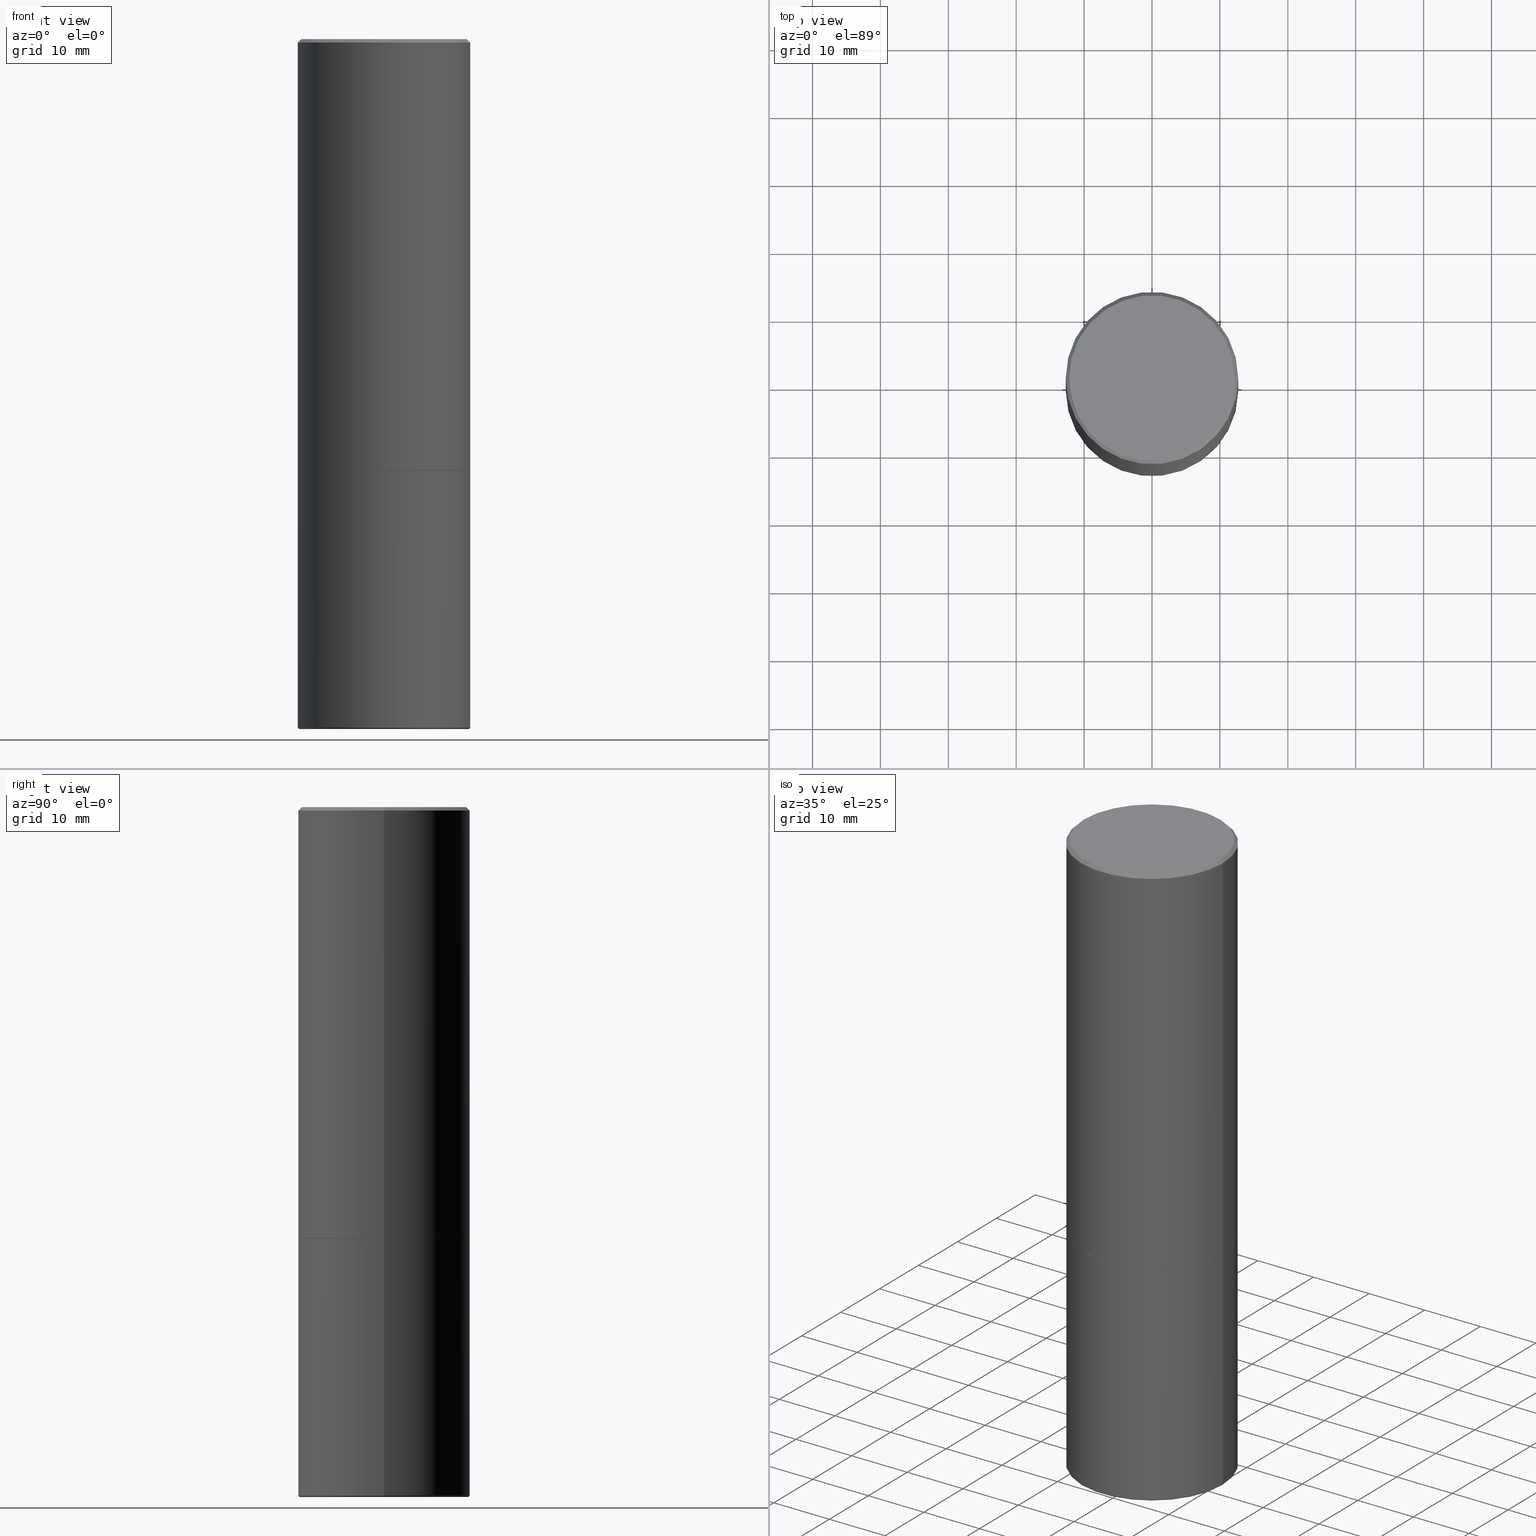
[diagram: canonical four-view strip — front | top / right | iso, engineering-drawing reading convention]
A machine part, canonical four-view strip (front | top / right | iso — engineering-drawing reading convention). The complete STEP part file that produces these views, byte-faithful:
ISO-10303-21;
HEADER;
FILE_DESCRIPTION (( 'STEP AP203' ),
    '1' );
FILE_NAME ('38876.STEP',
    '2024-03-03T18:51:58',
    ( '' ),
    ( '' ),
    'SwSTEP 2.0',
    'SolidWorks 2023',
    '' );
FILE_SCHEMA (( 'CONFIG_CONTROL_DESIGN' ));
ENDSEC;

DATA;
#1 = PERSON_AND_ORGANIZATION ( #189, #82 ) ;
#2 = DIRECTION ( 'NONE',  ( -2.445468806185136597E-29, 3.491481338843145583E-15, 1.000000000000000000 ) ) ;
#3 = COORDINATED_UNIVERSAL_TIME_OFFSET ( 5, 0, .BEHIND. ) ;
#4 = AXIS2_PLACEMENT_3D ( 'NONE', #66, #32, #128 ) ;
#5 = LOCAL_TIME ( 13, 51, 58.00000000000000000, #3 ) ;
#6 = APPROVAL_ROLE ( '' ) ;
#7 = ORIENTED_EDGE ( 'NONE', *, *, #285, .F. ) ;
#8 = DIRECTION ( 'NONE',  ( 0.000000000000000000, 0.000000000000000000, 1.000000000000000000 ) ) ;
#9 = DIRECTION ( 'NONE',  ( 1.000000000000000000, -6.982962677686266711E-15, 4.878011538933550964E-29 ) ) ;
#10 = ORIENTED_EDGE ( 'NONE', *, *, #291, .T. ) ;
#11 = CIRCLE ( 'NONE', #177, 0.5000000000000000000 ) ;
#12 = DIRECTION ( 'NONE',  ( 1.000000000000000000, -6.982962677686262766E-15, 0.000000000000000000 ) ) ;
#13 = ORIENTED_EDGE ( 'NONE', *, *, #211, .T. ) ;
#14 = EDGE_CURVE ( 'NONE', #342, #157, #262, .T. ) ;
#15 = AXIS2_PLACEMENT_3D ( 'NONE', #414, #25, #117 ) ;
#16 = CARTESIAN_POINT ( 'NONE',  ( -0.5000000000000000000, -1.037829686318364817E-14, -3.989999999999999769 ) ) ;
#17 = VERTEX_POINT ( 'NONE', #258 ) ;
#18 = DIRECTION ( 'NONE',  ( -2.438088387897960049E-29, 3.491481338843145188E-15, 1.000000000000000000 ) ) ;
#19 = EDGE_CURVE ( 'NONE', #187, #308, #161, .T. ) ;
#20 = CARTESIAN_POINT ( 'NONE',  ( 0.5000000000000001110, -3.500078625662629868E-15, -0.02000000000000010797 ) ) ;
#21 = CARTESIAN_POINT ( 'NONE',  ( 0.5000000000000000000, -3.491481338843133355E-15, 2.438088387897967896E-29 ) ) ;
#22 = VECTOR ( 'NONE', #53, 39.37007874015748143 ) ;
#23 = FACE_OUTER_BOUND ( 'NONE', #401, .T. ) ;
#24 = CARTESIAN_POINT ( 'NONE',  ( 6.113672015462842613E-29, -8.728703347107864943E-15, -2.500000000000000000 ) ) ;
#25 = DIRECTION ( 'NONE',  ( 2.445468806185136597E-29, -3.491481338843145583E-15, -1.000000000000000000 ) ) ;
#26 = DIRECTION ( 'NONE',  ( -1.000000000000000000, 7.105427357601049190E-15, 0.000000000000000000 ) ) ;
#27 =( NAMED_UNIT ( * ) PLANE_ANGLE_UNIT ( ) SI_UNIT ( $, .RADIAN. ) );
#28 = AXIS2_PLACEMENT_3D ( 'NONE', #134, #276, #210 ) ;
#29 = ADVANCED_FACE ( 'NONE', ( #345 ), #119, .T. ) ;
#30 = DIRECTION ( 'NONE',  ( 2.438088387897960049E-29, -3.491481338843145188E-15, -1.000000000000000000 ) ) ;
#31 = PERSON_AND_ORGANIZATION_ROLE ( 'creator' ) ;
#32 = DIRECTION ( 'NONE',  ( -2.445468806185136597E-29, 3.491481338843145583E-15, 1.000000000000000000 ) ) ;
#33 = APPROVAL_DATE_TIME ( #295, #114 ) ;
#34 = ORIENTED_EDGE ( 'NONE', *, *, #241, .T. ) ;
#35 = CC_DESIGN_APPROVAL ( #407, ( #373 ) ) ;
#36 = ADVANCED_FACE ( 'NONE', ( #83 ), #140, .T. ) ;
#37 = EDGE_LOOP ( 'NONE', ( #266, #302, #376, #38 ) ) ;
#38 = ORIENTED_EDGE ( 'NONE', *, *, #129, .F. ) ;
#39 = DATE_TIME_ROLE ( 'creation_date' ) ;
#40 = ORIENTED_EDGE ( 'NONE', *, *, #285, .T. ) ;
#41 = AXIS2_PLACEMENT_3D ( 'NONE', #383, #84, #191 ) ;
#42 = APPROVAL_PERSON_ORGANIZATION ( #324, #114, #355 ) ;
#43 = DIRECTION ( 'NONE',  ( -2.445468806185136597E-29, 3.491481338843145583E-15, 1.000000000000000000 ) ) ;
#44 = EDGE_LOOP ( 'NONE', ( #146, #338, #70, #162 ) ) ;
#45 = AXIS2_PLACEMENT_3D ( 'NONE', #46, #182, #281 ) ;
#46 = CARTESIAN_POINT ( 'NONE',  ( 9.781875224740546387E-29, -1.396592535537258233E-14, -4.000000000000000000 ) ) ;
#47 = ORIENTED_EDGE ( 'NONE', *, *, #299, .T. ) ;
#48 = ADVANCED_FACE ( 'NONE', ( #23 ), #59, .T. ) ;
#49 = CARTESIAN_POINT ( 'NONE',  ( 0.4799999999999999267, -3.396558832296482099E-15, 1.750090120941404697E-16 ) ) ;
#50 = CARTESIAN_POINT ( 'NONE',  ( -0.4899999999999999911, -1.044935113675965826E-14, -3.989999999999999769 ) ) ;
#51 = ADVANCED_FACE ( 'NONE', ( #263 ), #265, .T. ) ;
#52 = FACE_OUTER_BOUND ( 'NONE', #168, .T. ) ;
#53 = DIRECTION ( 'NONE',  ( -2.445468806185136877E-29, 3.491481338843145188E-15, 1.000000000000000000 ) ) ;
#54 = CARTESIAN_POINT ( 'NONE',  ( 0.000000000000000000, 0.000000000000000000, 0.000000000000000000 ) ) ;
#55 = EDGE_CURVE ( 'NONE', #17, #187, #198, .T. ) ;
#56 = PRODUCT_DEFINITION_SHAPE ( 'NONE', 'NONE',  #183 ) ;
#57 = CALENDAR_DATE ( 2024, 3, 3 ) ;
#58 = CONICAL_SURFACE ( 'NONE', #41, 0.4989999999999999991, 0.7853981633976873100 ) ;
#59 = CYLINDRICAL_SURFACE ( 'NONE', #64, 0.5000000000000000000 ) ;
#60 = COORDINATED_UNIVERSAL_TIME_OFFSET ( 5, 0, .BEHIND. ) ;
#61 = DIRECTION ( 'NONE',  ( -2.445468806185136597E-29, 3.491481338843145583E-15, 1.000000000000000000 ) ) ;
#62 = PERSON_AND_ORGANIZATION ( #189, #82 ) ;
#63 = EDGE_CURVE ( 'NONE', #157, #104, #269, .T. ) ;
#64 = AXIS2_PLACEMENT_3D ( 'NONE', #348, #227, #388 ) ;
#65 = EDGE_LOOP ( 'NONE', ( #312, #90 ) ) ;
#66 = CARTESIAN_POINT ( 'NONE',  ( 6.111226546656657010E-29, -8.725211865769021935E-15, -2.499000000000000110 ) ) ;
#67 = ORIENTED_EDGE ( 'NONE', *, *, #399, .T. ) ;
#68 = ADVANCED_FACE ( 'NONE', ( #86 ), #58, .T. ) ;
#69 = CARTESIAN_POINT ( 'NONE',  ( -0.5000000000000000000, 3.552713678800500929E-15, -2.459467545127452891E-29 ) ) ;
#70 = ORIENTED_EDGE ( 'NONE', *, *, #129, .T. ) ;
#71 = TOROIDAL_SURFACE ( 'NONE', #261, 0.4899999999999999911, 0.01000000000000009909 ) ;
#72 = CC_DESIGN_PERSON_AND_ORGANIZATION_ASSIGNMENT ( #1, #165, ( #109 ) ) ;
#73 = DIRECTION ( 'NONE',  ( 1.000000000000000000, -6.982962677686265922E-15, 0.000000000000000000 ) ) ;
#74 = DIRECTION ( 'NONE',  ( -2.445468806185136597E-29, 3.491481338843145583E-15, 1.000000000000000000 ) ) ;
#75 = CARTESIAN_POINT ( 'NONE',  ( -0.5000000000000001110, 3.421651712066270452E-15, -0.02000000000000010797 ) ) ;
#76 = CIRCLE ( 'NONE', #158, 0.5000000000000001110 ) ;
#77 = ORIENTED_EDGE ( 'NONE', *, *, #186, .F. ) ;
#78 = LENGTH_MEASURE_WITH_UNIT ( LENGTH_MEASURE( 0.02539999999999999897 ), #232 );
#79 = DIRECTION ( 'NONE',  ( -2.445468806185136597E-29, 3.491481338843145583E-15, 1.000000000000000000 ) ) ;
#80 = VECTOR ( 'NONE', #108, 39.37007874015748143 ) ;
#81 = APPLICATION_PROTOCOL_DEFINITION ( 'international standard', 'config_control_design', 1994, #147 ) ;
#82 = ORGANIZATION ( 'UNSPECIFIED', 'UNSPECIFIED', '' ) ;
#83 = FACE_OUTER_BOUND ( 'NONE', #181, .T. ) ;
#84 = DIRECTION ( 'NONE',  ( -2.445468806185136597E-29, 3.491481338843145583E-15, 1.000000000000000000 ) ) ;
#85 = CARTESIAN_POINT ( 'NONE',  ( 4.890937612370299433E-31, -6.982962677686328587E-17, -0.02000000000000010797 ) ) ;
#86 = FACE_OUTER_BOUND ( 'NONE', #300, .T. ) ;
#87 = APPROVAL ( #127, 'UNSPECIFIED' ) ;
#88 = COORDINATED_UNIVERSAL_TIME_OFFSET ( 5, 0, .BEHIND. ) ;
#89 = DIRECTION ( 'NONE',  ( -2.445468806185136877E-29, 3.491481338843145188E-15, 1.000000000000000000 ) ) ;
#90 = ORIENTED_EDGE ( 'NONE', *, *, #368, .F. ) ;
#91 = DIRECTION ( 'NONE',  ( -2.445468806185136597E-29, 3.491481338843145583E-15, 1.000000000000000000 ) ) ;
#92 = ORIENTED_EDGE ( 'NONE', *, *, #106, .F. ) ;
#93 = CALENDAR_DATE ( 2024, 3, 3 ) ;
#94 = UNCERTAINTY_MEASURE_WITH_UNIT (LENGTH_MEASURE( 1.000000000000000082E-05 ), #163, 'distance_accuracy_value', 'NONE');
#95 = AXIS2_PLACEMENT_3D ( 'NONE', #224, #343, #249 ) ;
#96 = EDGE_LOOP ( 'NONE', ( #7, #251 ) ) ;
#97 = APPLICATION_PROTOCOL_DEFINITION ( 'international standard', 'config_control_design', 1994, #271 ) ;
#98 = CARTESIAN_POINT ( 'NONE',  ( 6.113672015462842613E-29, -8.728703347107864943E-15, -2.500000000000000000 ) ) ;
#99 = ADVANCED_FACE ( 'NONE', ( #290 ), #411, .T. ) ;
#100 = ORIENTED_EDGE ( 'NONE', *, *, #381, .F. ) ;
#101 = PLANE ( 'NONE',  #143 ) ;
#102 = DIRECTION ( 'NONE',  ( -0.7071067811865447972, 2.468850131082228662E-15, -0.7071067811865501263 ) ) ;
#103 = LOCAL_TIME ( 13, 51, 58.00000000000000000, #88 ) ;
#104 = VERTEX_POINT ( 'NONE', #353 ) ;
#105 = MANIFOLD_SOLID_BREP ( 'Body-Move/Copy2[2]', #208 ) ;
#106 = EDGE_CURVE ( 'NONE', #386, #246, #116, .T. ) ;
#107 = CARTESIAN_POINT ( 'NONE',  ( -0.5000000000000000000, -7.777143265745505305E-15, -2.500000000000000000 ) ) ;
#108 = DIRECTION ( 'NONE',  ( -2.445468806185136877E-29, 3.491481338843145188E-15, 1.000000000000000000 ) ) ;
#109 = PRODUCT_DEFINITION_FORMATION_WITH_SPECIFIED_SOURCE ( 'ANY', '', #120, .NOT_KNOWN. ) ;
#110 = AXIS2_PLACEMENT_3D ( 'NONE', #50, #377, #26 ) ;
#111 = VERTEX_POINT ( 'NONE', #194 ) ;
#112 = DIRECTION ( 'NONE',  ( -0.7071067811867165487, 7.493145998870964739E-15, 0.7071067811863784858 ) ) ;
#113 = CARTESIAN_POINT ( 'NONE',  ( 0.000000000000000000, 0.000000000000000000, 0.000000000000000000 ) ) ;
#114 = APPROVAL ( #239, 'UNSPECIFIED' ) ;
#115 = CARTESIAN_POINT ( 'NONE',  ( 9.781875224740546387E-29, -1.396592535537258233E-14, -4.000000000000000000 ) ) ;
#116 = CIRCLE ( 'NONE', #354, 0.4799999999999999267 ) ;
#117 = DIRECTION ( 'NONE',  ( -1.000000000000000000, 6.982962677686265922E-15, 0.000000000000000000 ) ) ;
#118 = DIRECTION ( 'NONE',  ( 1.000000000000000000, -6.982962677686267499E-15, 4.876176775795935793E-29 ) ) ;
#119 = TOROIDAL_SURFACE ( 'NONE', #362, 0.4899999999999999911, 0.01000000000000009909 ) ;
#120 = PRODUCT ( '38876', '38876', '', ( #213 ) ) ;
#121 = ADVANCED_FACE ( 'NONE', ( #197 ), #318, .F. ) ;
#122 = FACE_OUTER_BOUND ( 'NONE', #344, .T. ) ;
#123 = ORIENTED_EDGE ( 'NONE', *, *, #321, .T. ) ;
#124 = ORIENTED_EDGE ( 'NONE', *, *, #106, .T. ) ;
#125 = APPROVAL_ROLE ( '' ) ;
#126 = CARTESIAN_POINT ( 'NONE',  ( 9.757420536678694842E-29, -1.393101054198414910E-14, -3.989999999999999769 ) ) ;
#127 = APPROVAL_STATUS ( 'not_yet_approved' ) ;
#128 = DIRECTION ( 'NONE',  ( 1.000000000000000000, -6.982962677686269866E-15, 0.000000000000000000 ) ) ;
#129 = EDGE_CURVE ( 'NONE', #17, #363, #415, .T. ) ;
#130 = ORIENTED_EDGE ( 'NONE', *, *, #166, .F. ) ;
#131 = SECURITY_CLASSIFICATION_LEVEL ( 'unclassified' ) ;
#132 = ORIENTED_EDGE ( 'NONE', *, *, #63, .F. ) ;
#133 = PERSON_AND_ORGANIZATION ( #189, #82 ) ;
#134 = CARTESIAN_POINT ( 'NONE',  ( 6.113672015462842613E-29, -8.728703347107864943E-15, -2.500000000000000000 ) ) ;
#135 = VERTEX_POINT ( 'NONE', #272 ) ;
#136 = EDGE_CURVE ( 'NONE', #246, #386, #360, .T. ) ;
#137 = DIRECTION ( 'NONE',  ( -2.445468806185136597E-29, 3.491481338843145583E-15, 1.000000000000000000 ) ) ;
#138 = CIRCLE ( 'NONE', #28, 0.5000000000000000000 ) ;
#139 = ORIENTED_EDGE ( 'NONE', *, *, #405, .F. ) ;
#140 = CONICAL_SURFACE ( 'NONE', #192, 0.4989999999999999991, 0.7853981633976873100 ) ;
#141 = CARTESIAN_POINT ( 'NONE',  ( 9.757420536678694842E-29, -1.393101054198414910E-14, -3.989999999999999769 ) ) ;
#142 = CARTESIAN_POINT ( 'NONE',  ( 0.4989999999999999991, -1.221320172327331228E-14, -2.500000000000000000 ) ) ;
#143 = AXIS2_PLACEMENT_3D ( 'NONE', #221, #18, #148 ) ;
#144 = EDGE_CURVE ( 'NONE', #111, #284, #228, .T. ) ;
#145 = LOCAL_TIME ( 13, 51, 58.00000000000000000, #275 ) ;
#146 = ORIENTED_EDGE ( 'NONE', *, *, #19, .F. ) ;
#147 = APPLICATION_CONTEXT ( 'configuration controlled 3d designs of mechanical parts and assemblies' ) ;
#148 = DIRECTION ( 'NONE',  ( 1.000000000000000000, -6.982962677686265922E-15, 4.876176775795935793E-29 ) ) ;
#149 = ORIENTED_EDGE ( 'NONE', *, *, #150, .F. ) ;
#150 = EDGE_CURVE ( 'NONE', #135, #225, #278, .T. ) ;
#151 = FACE_OUTER_BOUND ( 'NONE', #96, .T. ) ;
#152 = AXIS2_PLACEMENT_3D ( 'NONE', #24, #30, #202 ) ;
#153 = CARTESIAN_POINT ( 'NONE',  ( -0.5000000000000001110, 3.552713678800501718E-15, -2.459467545127453732E-29 ) ) ;
#154 = CARTESIAN_POINT ( 'NONE',  ( 0.5000000000000001110, -3.491481338843134539E-15, 2.438088387897968457E-29 ) ) ;
#155 = DIRECTION ( 'NONE',  ( 1.000000000000000000, -6.982962677686266711E-15, 0.000000000000000000 ) ) ;
#156 = CARTESIAN_POINT ( 'NONE',  ( -0.4989999999999999991, -5.183095095664965021E-15, -2.500000000000000000 ) ) ;
#157 = VERTEX_POINT ( 'NONE', #329 ) ;
#158 = AXIS2_PLACEMENT_3D ( 'NONE', #370, #43, #73 ) ;
#159 = DIRECTION ( 'NONE',  ( -1.000000000000000000, 6.982962677686265922E-15, 0.000000000000000000 ) ) ;
#160 = LOCAL_TIME ( 13, 51, 58.00000000000000000, #60 ) ;
#161 = CIRCLE ( 'NONE', #110, 0.01000000000000009909 ) ;
#162 = ORIENTED_EDGE ( 'NONE', *, *, #201, .F. ) ;
#163 =( CONVERSION_BASED_UNIT ( 'INCH', #78 ) LENGTH_UNIT ( ) NAMED_UNIT ( #392 ) );
#164 = CARTESIAN_POINT ( 'NONE',  ( 6.111226546656657010E-29, -8.725211865769021935E-15, -2.499000000000000110 ) ) ;
#165 = PERSON_AND_ORGANIZATION_ROLE ( 'design_supplier' ) ;
#166 = EDGE_CURVE ( 'NONE', #325, #104, #270, .T. ) ;
#167 = CARTESIAN_POINT ( 'NONE',  ( -0.4899999999999999911, -1.043128140666586904E-14, -4.000000000000000000 ) ) ;
#168 = EDGE_LOOP ( 'NONE', ( #280, #92, #10, #253 ) ) ;
#169 = PERSON_AND_ORGANIZATION ( #189, #82 ) ;
#170 = AXIS2_PLACEMENT_3D ( 'NONE', #301, #279, #364 ) ;
#171 = ORIENTED_EDGE ( 'NONE', *, *, #201, .T. ) ;
#172 = DESIGN_CONTEXT ( 'detailed design', #271, 'design' ) ;
#173 = CARTESIAN_POINT ( 'NONE',  ( -4.279790798774401163E-45, 6.110406998559833931E-31, 1.750090120941168532E-16 ) ) ;
#174 = ORIENTED_EDGE ( 'NONE', *, *, #136, .F. ) ;
#175 = EDGE_CURVE ( 'NONE', #363, #308, #298, .T. ) ;
#176 = DIRECTION ( 'NONE',  ( -6.982962677686266711E-15, -1.000000000000000000, 3.491481338843145583E-15 ) ) ;
#177 = AXIS2_PLACEMENT_3D ( 'NONE', #396, #61, #243 ) ;
#178 = EDGE_LOOP ( 'NONE', ( #124, #212 ) ) ;
#179 = APPROVAL_PERSON_ORGANIZATION ( #193, #407, #125 ) ;
#180 = CARTESIAN_POINT ( 'NONE',  ( 3.351822085289407153E-15, 0.4799999999999999267, -1.588406536597651338E-15 ) ) ;
#181 = EDGE_LOOP ( 'NONE', ( #139, #245, #334, #220 ) ) ;
#182 = DIRECTION ( 'NONE',  ( 2.438088387897960049E-29, -3.491481338843145188E-15, -1.000000000000000000 ) ) ;
#183 = PRODUCT_DEFINITION ( 'UNKNOWN', '', #109, #172 ) ;
#184 = CC_DESIGN_PERSON_AND_ORGANIZATION_ASSIGNMENT ( #204, #296, ( #373 ) ) ;
#185 = AXIS2_PLACEMENT_3D ( 'NONE', #113, #234, #200 ) ;
#186 = EDGE_CURVE ( 'NONE', #225, #135, #138, .T. ) ;
#187 = VERTEX_POINT ( 'NONE', #167 ) ;
#188 = DIRECTION ( 'NONE',  ( 1.000000000000000000, -6.982962677686266711E-15, 0.000000000000000000 ) ) ;
#189 = PERSON ( 'UNSPECIFIED', 'UNSPECIFIED', 'UNSPECIFIED', ('UNSPECIFIED'), ('UNSPECIFIED'), ('UNSPECIFIED') ) ;
#190 = CARTESIAN_POINT ( 'NONE',  ( 0.000000000000000000, 0.000000000000000000, 0.000000000000000000 ) ) ;
#191 = DIRECTION ( 'NONE',  ( 1.000000000000000000, -6.982962677686266711E-15, 0.000000000000000000 ) ) ;
#192 = AXIS2_PLACEMENT_3D ( 'NONE', #416, #418, #155 ) ;
#193 = PERSON_AND_ORGANIZATION ( #189, #82 ) ;
#194 = CARTESIAN_POINT ( 'NONE',  ( -0.4989999999999999991, -5.177796641316741831E-15, -2.500000000000000000 ) ) ;
#195 = CARTESIAN_POINT ( 'NONE',  ( 9.781875224740546387E-29, -1.396592535537258233E-14, -4.000000000000000000 ) ) ;
#196 = DIRECTION ( 'NONE',  ( 1.000000000000000000, -6.982962677686265922E-15, 4.883557194083112340E-29 ) ) ;
#197 = FACE_OUTER_BOUND ( 'NONE', #314, .T. ) ;
#198 = CIRCLE ( 'NONE', #305, 0.4899999999999999911 ) ;
#199 = APPROVAL_DATE_TIME ( #268, #407 ) ;
#200 = DIRECTION ( 'NONE',  ( 1.000000000000000000, -6.982962677686267499E-15, 4.876176775795935793E-29 ) ) ;
#201 = EDGE_CURVE ( 'NONE', #308, #363, #11, .T. ) ;
#202 = DIRECTION ( 'NONE',  ( -1.000000000000000000, 6.982962677686265922E-15, -4.876176775795935793E-29 ) ) ;
#203 = DATE_AND_TIME ( #93, #103 ) ;
#204 = PERSON_AND_ORGANIZATION ( #189, #82 ) ;
#205 = CONICAL_SURFACE ( 'NONE', #15, 0.5000000000000001110, 0.7853981633974445042 ) ;
#206 = LOCAL_TIME ( 13, 51, 58.00000000000000000, #413 ) ;
#207 = DIRECTION ( 'NONE',  ( 1.000000000000000000, -6.982962677686269077E-15, 0.000000000000000000 ) ) ;
#208 = CLOSED_SHELL ( 'NONE', ( #68, #51, #351, #357, #99, #36, #332, #339 ) ) ;
#209 = CALENDAR_DATE ( 2024, 3, 3 ) ;
#210 = DIRECTION ( 'NONE',  ( 1.000000000000000000, -6.982962677686269077E-15, 0.000000000000000000 ) ) ;
#211 = EDGE_CURVE ( 'NONE', #157, #342, #406, .T. ) ;
#212 = ORIENTED_EDGE ( 'NONE', *, *, #136, .T. ) ;
#213 = MECHANICAL_CONTEXT ( 'NONE', #147, 'mechanical' ) ;
#214 = CALENDAR_DATE ( 2024, 3, 3 ) ;
#215 = FACE_OUTER_BOUND ( 'NONE', #178, .T. ) ;
#216 = AXIS2_PLACEMENT_3D ( 'NONE', #402, #176, #12 ) ;
#217 = EDGE_LOOP ( 'NONE', ( #244, #331, #374, #130 ) ) ;
#218 = PRODUCT_RELATED_PRODUCT_CATEGORY ( 'detail', '', ( #120 ) ) ;
#219 = CARTESIAN_POINT ( 'NONE',  ( -0.5000000000000001110, 3.421651712066270452E-15, -0.02000000000000010797 ) ) ;
#220 = ORIENTED_EDGE ( 'NONE', *, *, #14, .F. ) ;
#221 = CARTESIAN_POINT ( 'NONE',  ( 6.113672015462842613E-29, -8.728703347107864943E-15, -2.500000000000000000 ) ) ;
#222 = ORIENTED_EDGE ( 'NONE', *, *, #405, .T. ) ;
#223 = CONICAL_SURFACE ( 'NONE', #317, 0.5000000000000001110, 0.7853981633974445042 ) ;
#224 = CARTESIAN_POINT ( 'NONE',  ( 0.000000000000000000, 0.000000000000000000, 0.000000000000000000 ) ) ;
#225 = VERTEX_POINT ( 'NONE', #107 ) ;
#226 = DIRECTION ( 'NONE',  ( 1.000000000000000000, -6.982962677686265922E-15, 0.000000000000000000 ) ) ;
#227 = DIRECTION ( 'NONE',  ( -2.445468806185136597E-29, 3.491481338843145583E-15, 1.000000000000000000 ) ) ;
#228 = CIRCLE ( 'NONE', #283, 0.4989999999999999991 ) ;
#229 = VECTOR ( 'NONE', #367, 39.37007874015748143 ) ;
#230 = CARTESIAN_POINT ( 'NONE',  ( -0.5000000000000002220, -8.448070674724393209E-16, -2.499000000000000110 ) ) ;
#231 = DIRECTION ( 'NONE',  ( -2.445468806185136597E-29, 3.491481338843145583E-15, 1.000000000000000000 ) ) ;
#232 =( LENGTH_UNIT ( ) NAMED_UNIT ( * ) SI_UNIT ( $, .METRE. ) );
#233 = DATE_TIME_ROLE ( 'classification_date' ) ;
#234 = DIRECTION ( 'NONE',  ( -2.445468806185136597E-29, 3.491481338843145583E-15, 1.000000000000000000 ) ) ;
#235 = CC_DESIGN_DATE_AND_TIME_ASSIGNMENT ( #203, #39, ( #183 ) ) ;
#236 = VECTOR ( 'NONE', #102, 39.37007874015748854 ) ;
#237 = DIRECTION ( 'NONE',  ( -2.445468806185136597E-29, 3.491481338843145583E-15, 1.000000000000000000 ) ) ;
#238 = ORIENTED_EDGE ( 'NONE', *, *, #291, .F. ) ;
#239 = APPROVAL_STATUS ( 'not_yet_approved' ) ;
#240 = AXIS2_PLACEMENT_3D ( 'NONE', #173, #303, #9 ) ;
#241 = EDGE_CURVE ( 'NONE', #308, #225, #337, .T. ) ;
#242 = APPROVAL_PERSON_ORGANIZATION ( #169, #87, #6 ) ;
#243 = DIRECTION ( 'NONE',  ( 1.000000000000000000, -6.982962677686266711E-15, 0.000000000000000000 ) ) ;
#244 = ORIENTED_EDGE ( 'NONE', *, *, #399, .F. ) ;
#245 = ORIENTED_EDGE ( 'NONE', *, *, #144, .T. ) ;
#246 = VERTEX_POINT ( 'NONE', #49 ) ;
#247 = ADVANCED_FACE ( 'NONE', ( #371 ), #286, .T. ) ;
#248 = CIRCLE ( 'NONE', #293, 0.4989999999999999991 ) ;
#249 = DIRECTION ( 'NONE',  ( 1.000000000000000000, -6.982962677686266711E-15, 4.876176775795935793E-29 ) ) ;
#250 = LINE ( 'NONE', #404, #229 ) ;
#251 = ORIENTED_EDGE ( 'NONE', *, *, #144, .F. ) ;
#252 = ADVANCED_FACE ( 'NONE', ( #282 ), #309, .T. ) ;
#253 = ORIENTED_EDGE ( 'NONE', *, *, #166, .T. ) ;
#254 = VECTOR ( 'NONE', #89, 39.37007874015748143 ) ;
#255 = EDGE_LOOP ( 'NONE', ( #13, #67, #256, #132 ) ) ;
#256 = ORIENTED_EDGE ( 'NONE', *, *, #321, .F. ) ;
#257 = DIRECTION ( 'NONE',  ( -1.000000000000000000, 6.982962677686265922E-15, -4.876176775795935793E-29 ) ) ;
#258 = CARTESIAN_POINT ( 'NONE',  ( 0.4899999999999999911, -1.738757706743885081E-14, -4.000000000000000000 ) ) ;
#259 =( NAMED_UNIT ( * ) SI_UNIT ( $, .STERADIAN. ) SOLID_ANGLE_UNIT ( ) );
#260 = DIRECTION ( 'NONE',  ( 1.000000000000000000, -6.982962677686269866E-15, 0.000000000000000000 ) ) ;
#261 = AXIS2_PLACEMENT_3D ( 'NONE', #319, #408, #196 ) ;
#262 = CIRCLE ( 'NONE', #313, 0.5000000000000002220 ) ;
#263 = FACE_OUTER_BOUND ( 'NONE', #255, .T. ) ;
#264 = DIRECTION ( 'NONE',  ( -2.445468806185136597E-29, 3.491481338843145583E-15, 1.000000000000000000 ) ) ;
#265 = CYLINDRICAL_SURFACE ( 'NONE', #311, 0.5000000000000001110 ) ;
#266 = ORIENTED_EDGE ( 'NONE', *, *, #55, .T. ) ;
#267 = PERSON_AND_ORGANIZATION_ROLE ( 'design_owner' ) ;
#268 = DATE_AND_TIME ( #57, #206 ) ;
#269 = LINE ( 'NONE', #154, #254 ) ;
#270 = CIRCLE ( 'NONE', #170, 0.5000000000000001110 ) ;
#271 = APPLICATION_CONTEXT ( 'configuration controlled 3d designs of mechanical parts and assemblies' ) ;
#272 = CARTESIAN_POINT ( 'NONE',  ( 0.5000000000000000000, -1.222018468595099830E-14, -2.500000000000000000 ) ) ;
#273 = ORIENTED_EDGE ( 'NONE', *, *, #211, .F. ) ;
#274 = EDGE_CURVE ( 'NONE', #284, #157, #250, .T. ) ;
#275 = COORDINATED_UNIVERSAL_TIME_OFFSET ( 5, 0, .BEHIND. ) ;
#276 = DIRECTION ( 'NONE',  ( -2.445468806185136597E-29, 3.491481338843145583E-15, 1.000000000000000000 ) ) ;
#277 = MANIFOLD_SOLID_BREP ( 'Body-Move/Copy2[1]', #347 ) ;
#278 = CIRCLE ( 'NONE', #341, 0.5000000000000000000 ) ;
#279 = DIRECTION ( 'NONE',  ( -2.445468806185136597E-29, 3.491481338843145583E-15, 1.000000000000000000 ) ) ;
#280 = ORIENTED_EDGE ( 'NONE', *, *, #299, .F. ) ;
#281 = DIRECTION ( 'NONE',  ( -1.000000000000000000, 6.982962677686265922E-15, -4.876176775795935793E-29 ) ) ;
#282 = FACE_OUTER_BOUND ( 'NONE', #287, .T. ) ;
#283 = AXIS2_PLACEMENT_3D ( 'NONE', #400, #91, #359 ) ;
#284 = VERTEX_POINT ( 'NONE', #142 ) ;
#285 = EDGE_CURVE ( 'NONE', #284, #111, #248, .T. ) ;
#286 = PLANE ( 'NONE',  #45 ) ;
#287 = EDGE_LOOP ( 'NONE', ( #330, #171, #336, #77 ) ) ;
#288 = DIRECTION ( 'NONE',  ( -2.445468806185136877E-29, 3.491481338843145188E-15, 1.000000000000000000 ) ) ;
#289 = DATE_AND_TIME ( #214, #5 ) ;
#290 = FACE_OUTER_BOUND ( 'NONE', #217, .T. ) ;
#291 = EDGE_CURVE ( 'NONE', #386, #325, #365, .T. ) ;
#292 = DIRECTION ( 'NONE',  ( -2.445468806185136597E-29, 3.491481338843145583E-15, 1.000000000000000000 ) ) ;
#293 = AXIS2_PLACEMENT_3D ( 'NONE', #403, #74, #188 ) ;
#294 = DIRECTION ( 'NONE',  ( 1.000000000000000000, -6.982962677686265922E-15, 4.883557194083112340E-29 ) ) ;
#295 = DATE_AND_TIME ( #209, #160 ) ;
#296 = PERSON_AND_ORGANIZATION_ROLE ( 'classification_officer' ) ;
#297 = ORIENTED_EDGE ( 'NONE', *, *, #274, .F. ) ;
#298 = CIRCLE ( 'NONE', #326, 0.5000000000000000000 ) ;
#299 = EDGE_CURVE ( 'NONE', #246, #104, #340, .T. ) ;
#300 = EDGE_LOOP ( 'NONE', ( #40, #222, #273, #297 ) ) ;
#301 = CARTESIAN_POINT ( 'NONE',  ( 4.890937612370299433E-31, -6.982962677686328587E-17, -0.02000000000000010797 ) ) ;
#302 = ORIENTED_EDGE ( 'NONE', *, *, #19, .T. ) ;
#303 = DIRECTION ( 'NONE',  ( -2.445468806185136597E-29, 3.491481338843145583E-15, 1.000000000000000000 ) ) ;
#304 = CC_DESIGN_PERSON_AND_ORGANIZATION_ASSIGNMENT ( #323, #328, ( #183 ) ) ;
#305 = AXIS2_PLACEMENT_3D ( 'NONE', #115, #385, #350 ) ;
#306 = SHAPE_DEFINITION_REPRESENTATION ( #56, #410 ) ;
#307 = CC_DESIGN_APPROVAL ( #114, ( #109 ) ) ;
#308 = VERTEX_POINT ( 'NONE', #16 ) ;
#309 = CYLINDRICAL_SURFACE ( 'NONE', #95, 0.5000000000000000000 ) ;
#310 = DIRECTION ( 'NONE',  ( 0.7071067811865447972, -7.319954787623245001E-15, -0.7071067811865501263 ) ) ;
#311 = AXIS2_PLACEMENT_3D ( 'NONE', #54, #79, #118 ) ;
#312 = ORIENTED_EDGE ( 'NONE', *, *, #55, .F. ) ;
#313 = AXIS2_PLACEMENT_3D ( 'NONE', #164, #2, #260 ) ;
#314 = EDGE_LOOP ( 'NONE', ( #369, #358 ) ) ;
#315 = CC_DESIGN_DATE_AND_TIME_ASSIGNMENT ( #289, #233, ( #373 ) ) ;
#316 = CARTESIAN_POINT ( 'NONE',  ( 0.5000000000000000000, -1.742249188082728404E-14, -3.989999999999999769 ) ) ;
#317 = AXIS2_PLACEMENT_3D ( 'NONE', #85, #412, #159 ) ;
#318 = PLANE ( 'NONE',  #152 ) ;
#319 = CARTESIAN_POINT ( 'NONE',  ( 9.757420536678694842E-29, -1.393101054198414910E-14, -3.989999999999999769 ) ) ;
#320 = CIRCLE ( 'NONE', #372, 0.4899999999999999911 ) ;
#321 = EDGE_CURVE ( 'NONE', #104, #325, #76, .T. ) ;
#322 = DIRECTION ( 'NONE',  ( 1.000000000000000000, -6.982962677686266711E-15, 4.878011538933550964E-29 ) ) ;
#323 = PERSON_AND_ORGANIZATION ( #189, #82 ) ;
#324 = PERSON_AND_ORGANIZATION ( #189, #82 ) ;
#325 = VERTEX_POINT ( 'NONE', #75 ) ;
#326 = AXIS2_PLACEMENT_3D ( 'NONE', #141, #237, #356 ) ;
#327 = CC_DESIGN_APPROVAL ( #87, ( #183 ) ) ;
#328 = PERSON_AND_ORGANIZATION_ROLE ( 'creator' ) ;
#329 = CARTESIAN_POINT ( 'NONE',  ( 0.5000000000000002220, -1.221669320461215845E-14, -2.499000000000000110 ) ) ;
#330 = ORIENTED_EDGE ( 'NONE', *, *, #241, .F. ) ;
#331 = ORIENTED_EDGE ( 'NONE', *, *, #14, .T. ) ;
#332 = ADVANCED_FACE ( 'NONE', ( #151 ), #101, .F. ) ;
#333 = APPROVAL_DATE_TIME ( #395, #87 ) ;
#334 = ORIENTED_EDGE ( 'NONE', *, *, #274, .T. ) ;
#335 = PLANE ( 'NONE',  #379 ) ;
#336 = ORIENTED_EDGE ( 'NONE', *, *, #381, .T. ) ;
#337 = LINE ( 'NONE', #69, #80 ) ;
#338 = ORIENTED_EDGE ( 'NONE', *, *, #368, .T. ) ;
#339 = ADVANCED_FACE ( 'NONE', ( #215 ), #335, .F. ) ;
#340 = LINE ( 'NONE', #20, #390 ) ;
#341 = AXIS2_PLACEMENT_3D ( 'NONE', #98, #137, #207 ) ;
#342 = VERTEX_POINT ( 'NONE', #230 ) ;
#343 = DIRECTION ( 'NONE',  ( -2.445468806185136597E-29, 3.491481338843145583E-15, 1.000000000000000000 ) ) ;
#344 = EDGE_LOOP ( 'NONE', ( #174, #47, #123, #238 ) ) ;
#345 = FACE_OUTER_BOUND ( 'NONE', #37, .T. ) ;
#346 = CARTESIAN_POINT ( 'NONE',  ( -4.279790798774401163E-45, 6.110406998559833931E-31, 1.750090120941168532E-16 ) ) ;
#347 = CLOSED_SHELL ( 'NONE', ( #48, #29, #121, #252, #389, #247 ) ) ;
#348 = CARTESIAN_POINT ( 'NONE',  ( 0.000000000000000000, 0.000000000000000000, 0.000000000000000000 ) ) ;
#349 = FACE_OUTER_BOUND ( 'NONE', #44, .T. ) ;
#350 = DIRECTION ( 'NONE',  ( 1.000000000000000000, -6.982962677686265922E-15, 0.000000000000000000 ) ) ;
#351 = ADVANCED_FACE ( 'NONE', ( #122 ), #223, .T. ) ;
#352 = CARTESIAN_POINT ( 'NONE',  ( -0.4799999999999999267, 3.386736898677839197E-15, 1.750090120940932860E-16 ) ) ;
#353 = CARTESIAN_POINT ( 'NONE',  ( 0.5000000000000001110, -3.500078625662629868E-15, -0.02000000000000010797 ) ) ;
#354 = AXIS2_PLACEMENT_3D ( 'NONE', #346, #231, #322 ) ;
#355 = APPROVAL_ROLE ( '' ) ;
#356 = DIRECTION ( 'NONE',  ( 1.000000000000000000, -6.982962677686266711E-15, 0.000000000000000000 ) ) ;
#357 = ADVANCED_FACE ( 'NONE', ( #52 ), #205, .T. ) ;
#358 = ORIENTED_EDGE ( 'NONE', *, *, #186, .T. ) ;
#359 = DIRECTION ( 'NONE',  ( 1.000000000000000000, -6.982962677686266711E-15, 0.000000000000000000 ) ) ;
#360 = CIRCLE ( 'NONE', #240, 0.4799999999999999267 ) ;
#361 = CC_DESIGN_SECURITY_CLASSIFICATION ( #373, ( #109 ) ) ;
#362 = AXIS2_PLACEMENT_3D ( 'NONE', #126, #292, #294 ) ;
#363 = VERTEX_POINT ( 'NONE', #316 ) ;
#364 = DIRECTION ( 'NONE',  ( 1.000000000000000000, -6.982962677686265922E-15, 0.000000000000000000 ) ) ;
#365 = LINE ( 'NONE', #219, #236 ) ;
#366 = VECTOR ( 'NONE', #288, 39.37007874015748143 ) ;
#367 = DIRECTION ( 'NONE',  ( 0.7071067811867165487, -2.468850131084027659E-15, 0.7071067811863784858 ) ) ;
#368 = EDGE_CURVE ( 'NONE', #187, #17, #320, .T. ) ;
#369 = ORIENTED_EDGE ( 'NONE', *, *, #150, .T. ) ;
#370 = CARTESIAN_POINT ( 'NONE',  ( 4.890937612370299433E-31, -6.982962677686328587E-17, -0.02000000000000010797 ) ) ;
#371 = FACE_OUTER_BOUND ( 'NONE', #65, .T. ) ;
#372 = AXIS2_PLACEMENT_3D ( 'NONE', #195, #264, #226 ) ;
#373 = SECURITY_CLASSIFICATION ( '', '', #131 ) ;
#374 = ORIENTED_EDGE ( 'NONE', *, *, #63, .T. ) ;
#375 = CC_DESIGN_PERSON_AND_ORGANIZATION_ASSIGNMENT ( #133, #267, ( #120 ) ) ;
#376 = ORIENTED_EDGE ( 'NONE', *, *, #175, .F. ) ;
#377 = DIRECTION ( 'NONE',  ( 7.105427357601001859E-15, 1.000000000000000000, -3.491481338843145583E-15 ) ) ;
#378 = DIRECTION ( 'NONE',  ( 2.438088387897960049E-29, -3.491481338843145188E-15, -1.000000000000000000 ) ) ;
#379 = AXIS2_PLACEMENT_3D ( 'NONE', #180, #378, #257 ) ;
#380 = VECTOR ( 'NONE', #112, 39.37007874015748143 ) ;
#381 = EDGE_CURVE ( 'NONE', #363, #135, #382, .T. ) ;
#382 = LINE ( 'NONE', #21, #22 ) ;
#383 = CARTESIAN_POINT ( 'NONE',  ( 6.113672015462842613E-29, -8.728703347107864943E-15, -2.500000000000000000 ) ) ;
#384 = LINE ( 'NONE', #153, #366 ) ;
#385 = DIRECTION ( 'NONE',  ( -2.445468806185136597E-29, 3.491481338843145583E-15, 1.000000000000000000 ) ) ;
#386 = VERTEX_POINT ( 'NONE', #352 ) ;
#387 = CALENDAR_DATE ( 2024, 3, 3 ) ;
#388 = DIRECTION ( 'NONE',  ( 1.000000000000000000, -6.982962677686266711E-15, 4.876176775795935793E-29 ) ) ;
#389 = ADVANCED_FACE ( 'NONE', ( #349 ), #71, .T. ) ;
#390 = VECTOR ( 'NONE', #310, 39.37007874015748854 ) ;
#391 =( GEOMETRIC_REPRESENTATION_CONTEXT ( 3 ) GLOBAL_UNCERTAINTY_ASSIGNED_CONTEXT ( ( #94 ) ) GLOBAL_UNIT_ASSIGNED_CONTEXT ( ( #163, #27, #259 ) ) REPRESENTATION_CONTEXT ( 'NONE', 'WORKASPACE' ) );
#392 = DIMENSIONAL_EXPONENTS ( 1.000000000000000000, 0.000000000000000000, 0.000000000000000000, 0.000000000000000000, 0.000000000000000000, 0.000000000000000000, 0.000000000000000000 ) ;
#393 = CC_DESIGN_PERSON_AND_ORGANIZATION_ASSIGNMENT ( #62, #31, ( #109 ) ) ;
#394 = DIRECTION ( 'NONE',  ( 1.000000000000000000, 0.000000000000000000, 0.000000000000000000 ) ) ;
#395 = DATE_AND_TIME ( #387, #145 ) ;
#396 = CARTESIAN_POINT ( 'NONE',  ( 9.757420536678694842E-29, -1.393101054198414910E-14, -3.989999999999999769 ) ) ;
#397 = ORIENTED_EDGE ( 'NONE', *, *, #175, .T. ) ;
#398 = AXIS2_PLACEMENT_3D ( 'NONE', #190, #8, #394 ) ;
#399 = EDGE_CURVE ( 'NONE', #342, #325, #384, .T. ) ;
#400 = CARTESIAN_POINT ( 'NONE',  ( 6.113672015462842613E-29, -8.728703347107864943E-15, -2.500000000000000000 ) ) ;
#401 = EDGE_LOOP ( 'NONE', ( #397, #34, #149, #100 ) ) ;
#402 = CARTESIAN_POINT ( 'NONE',  ( 0.4899999999999999911, -1.735266225405042074E-14, -3.989999999999999769 ) ) ;
#403 = CARTESIAN_POINT ( 'NONE',  ( 6.113672015462842613E-29, -8.728703347107864943E-15, -2.500000000000000000 ) ) ;
#404 = CARTESIAN_POINT ( 'NONE',  ( 0.4989999999999999991, -1.221320172327331228E-14, -2.500000000000000000 ) ) ;
#405 = EDGE_CURVE ( 'NONE', #111, #342, #417, .T. ) ;
#406 = CIRCLE ( 'NONE', #4, 0.5000000000000002220 ) ;
#407 = APPROVAL ( #409, 'UNSPECIFIED' ) ;
#408 = DIRECTION ( 'NONE',  ( -2.445468806185136597E-29, 3.491481338843145583E-15, 1.000000000000000000 ) ) ;
#409 = APPROVAL_STATUS ( 'not_yet_approved' ) ;
#410 = ADVANCED_BREP_SHAPE_REPRESENTATION ( '38876', ( #277, #105, #398 ), #391 ) ;
#411 = CYLINDRICAL_SURFACE ( 'NONE', #185, 0.5000000000000001110 ) ;
#412 = DIRECTION ( 'NONE',  ( 2.445468806185136597E-29, -3.491481338843145583E-15, -1.000000000000000000 ) ) ;
#413 = COORDINATED_UNIVERSAL_TIME_OFFSET ( 5, 0, .BEHIND. ) ;
#414 = CARTESIAN_POINT ( 'NONE',  ( 4.890937612370299433E-31, -6.982962677686328587E-17, -0.02000000000000010797 ) ) ;
#415 = CIRCLE ( 'NONE', #216, 0.01000000000000009909 ) ;
#416 = CARTESIAN_POINT ( 'NONE',  ( 6.113672015462842613E-29, -8.728703347107864943E-15, -2.500000000000000000 ) ) ;
#417 = LINE ( 'NONE', #156, #380 ) ;
#418 = DIRECTION ( 'NONE',  ( -2.445468806185136597E-29, 3.491481338843145583E-15, 1.000000000000000000 ) ) ;
ENDSEC;
END-ISO-10303-21;
